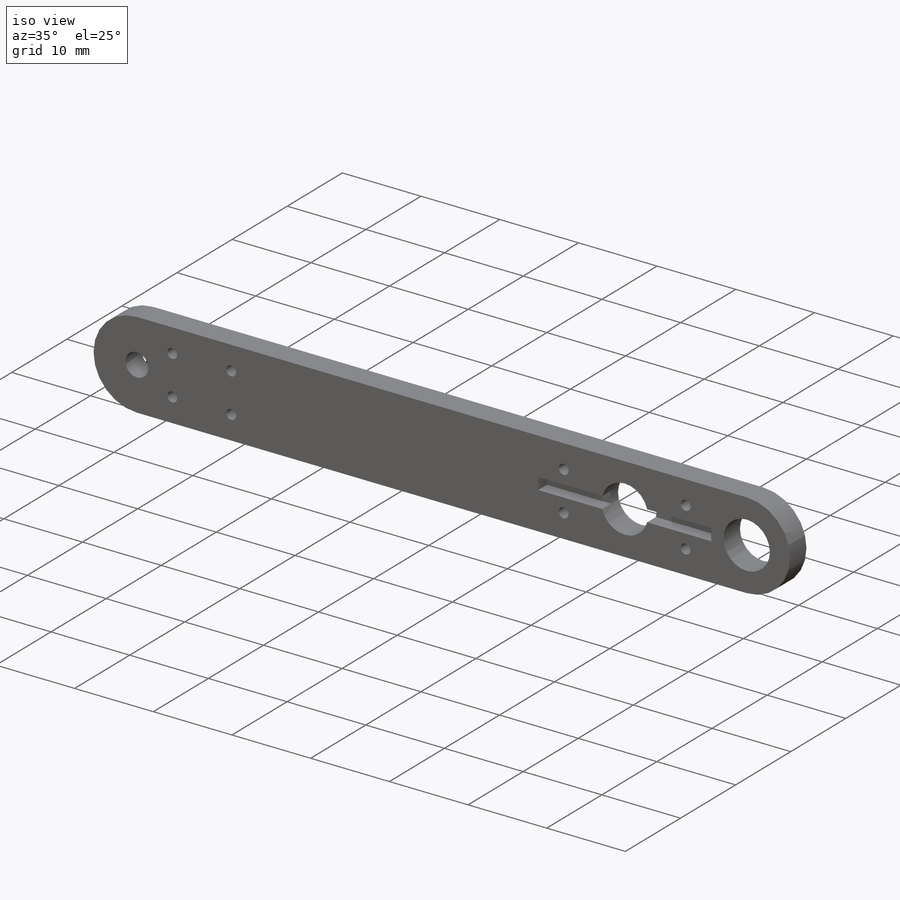
[diagram: iso view]
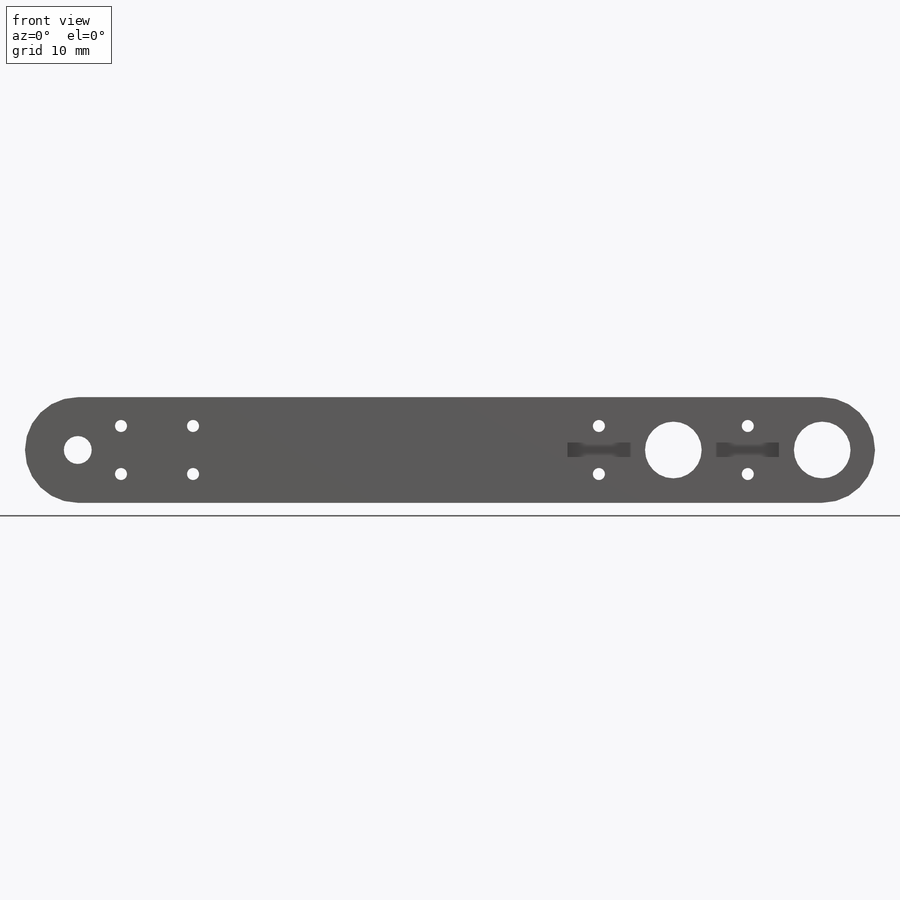
[diagram: front view]
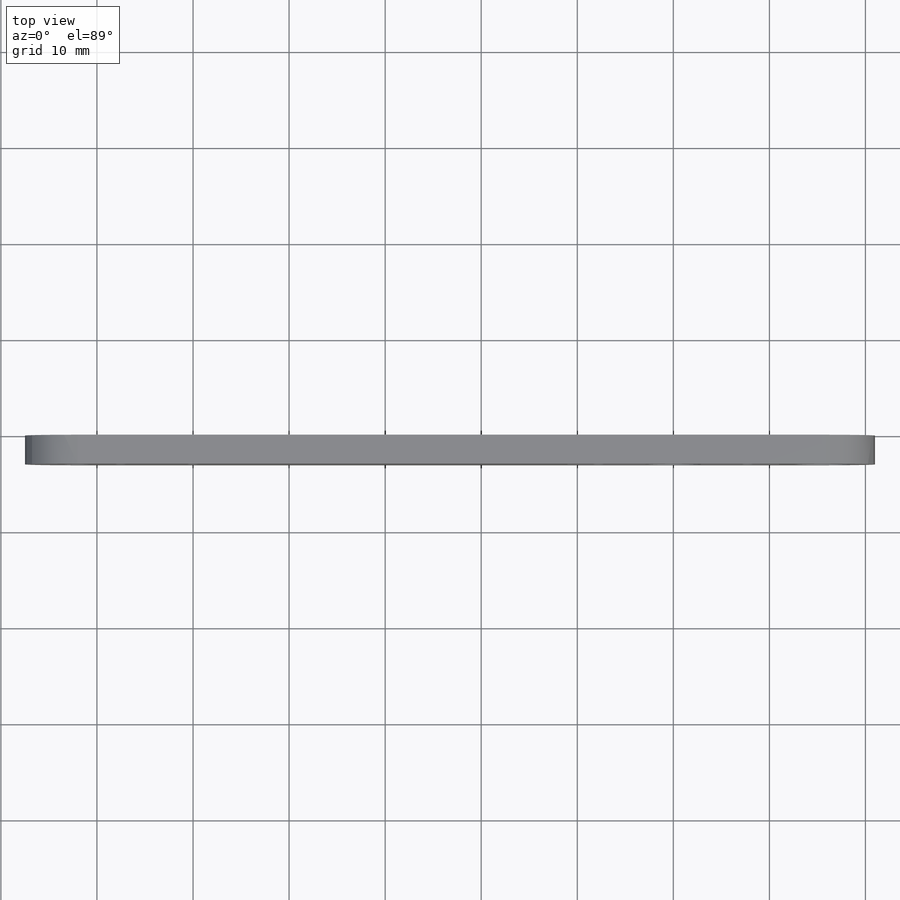
[diagram: top view]
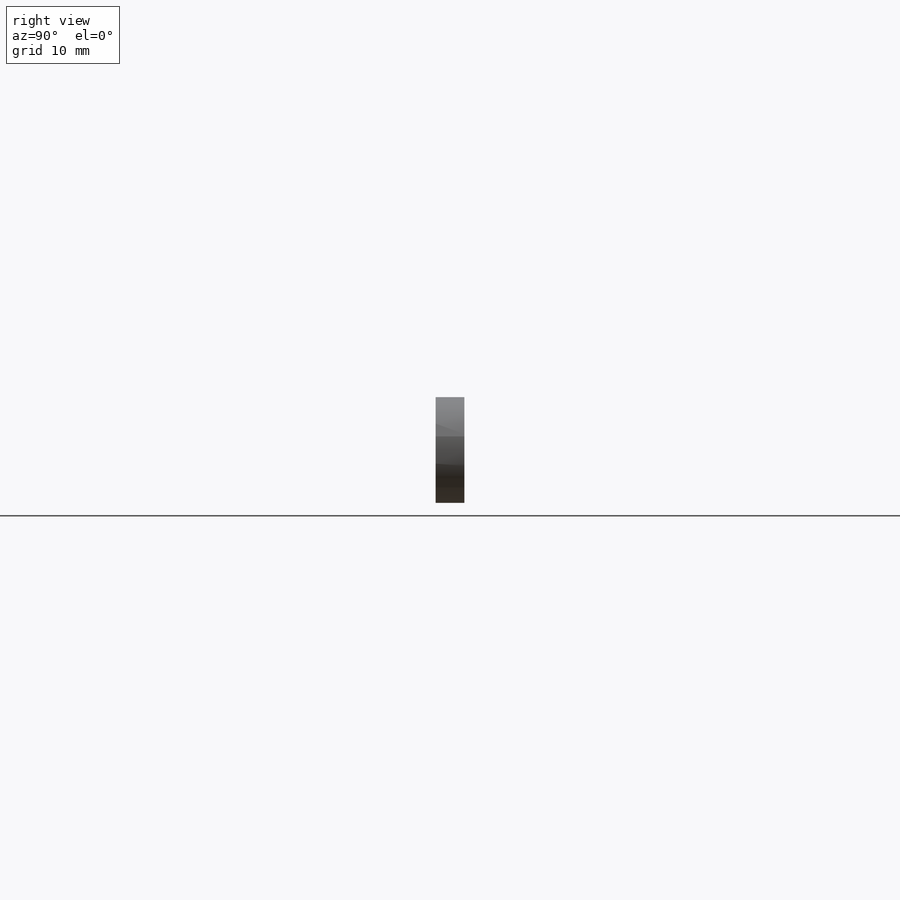
[diagram: right view]
SOLIDWORKS PART (.sldprt)
format: sldprt  version: not decoded by parser v0  size: 373,248 bytes
history: native  units: mm
features: sketch x4, material x1, extrude x1, hole x1, mirror x1, cut_extrude x1 (+12 scaffold rows collapsed)
feature tree (21):
  scaffold x12  (default folders/planes/origin — collapsed)
  material  "POM copolymère d'acétal"
  sketch  "Sketch1"  dims[c1.D1=5.9mm c1.D2=6.0mm c1.D3=2.9mm c1.D4=3.0mm c1.D5=5.5mm c1.D6=5.9mm c2.D2=15.5mm c2.D4=62.0mm c2.D6=77.5mm]
  extrude  "Boss-Extrude1"  Depth=3mm
  hole  "Trou taraudé M1.61"  Diameter=1.25mm Depth=3mm
  sketch  "Sketch3"  dims[c1.D1=3.0mm c1.D2=3.0mm c1.D4=6.0mm c1.D5=6.0mm c2.D1=4.5mm c2.D2=12.0mm c2.D3=5.0mm c2.D4=7.0mm c2.D5=6.0mm]
  sketch  "Sketch2"  dims[hole-wizard template sketch: 60 standard entries collapsed; hole parameters kept: c18.Profondeur du trou pour taraudage jusqu'au prochain=3.0mm]
  mirror  "Mirror1"
  sketch  "Esquisse3"  dims[D1=0.75mm D2=1.5mm D3=11.0mm D4=22.0mm]
  cut_extrude  "Enlèv. mat.-Extru.1"  Depth=1.6mm
decode coverage: 7 of 8 modeling features carry decoded parameters
note: ~ marks probable driven/reference dimensions
note: suppression state not decoded; provenance and decode notes live in map.json
